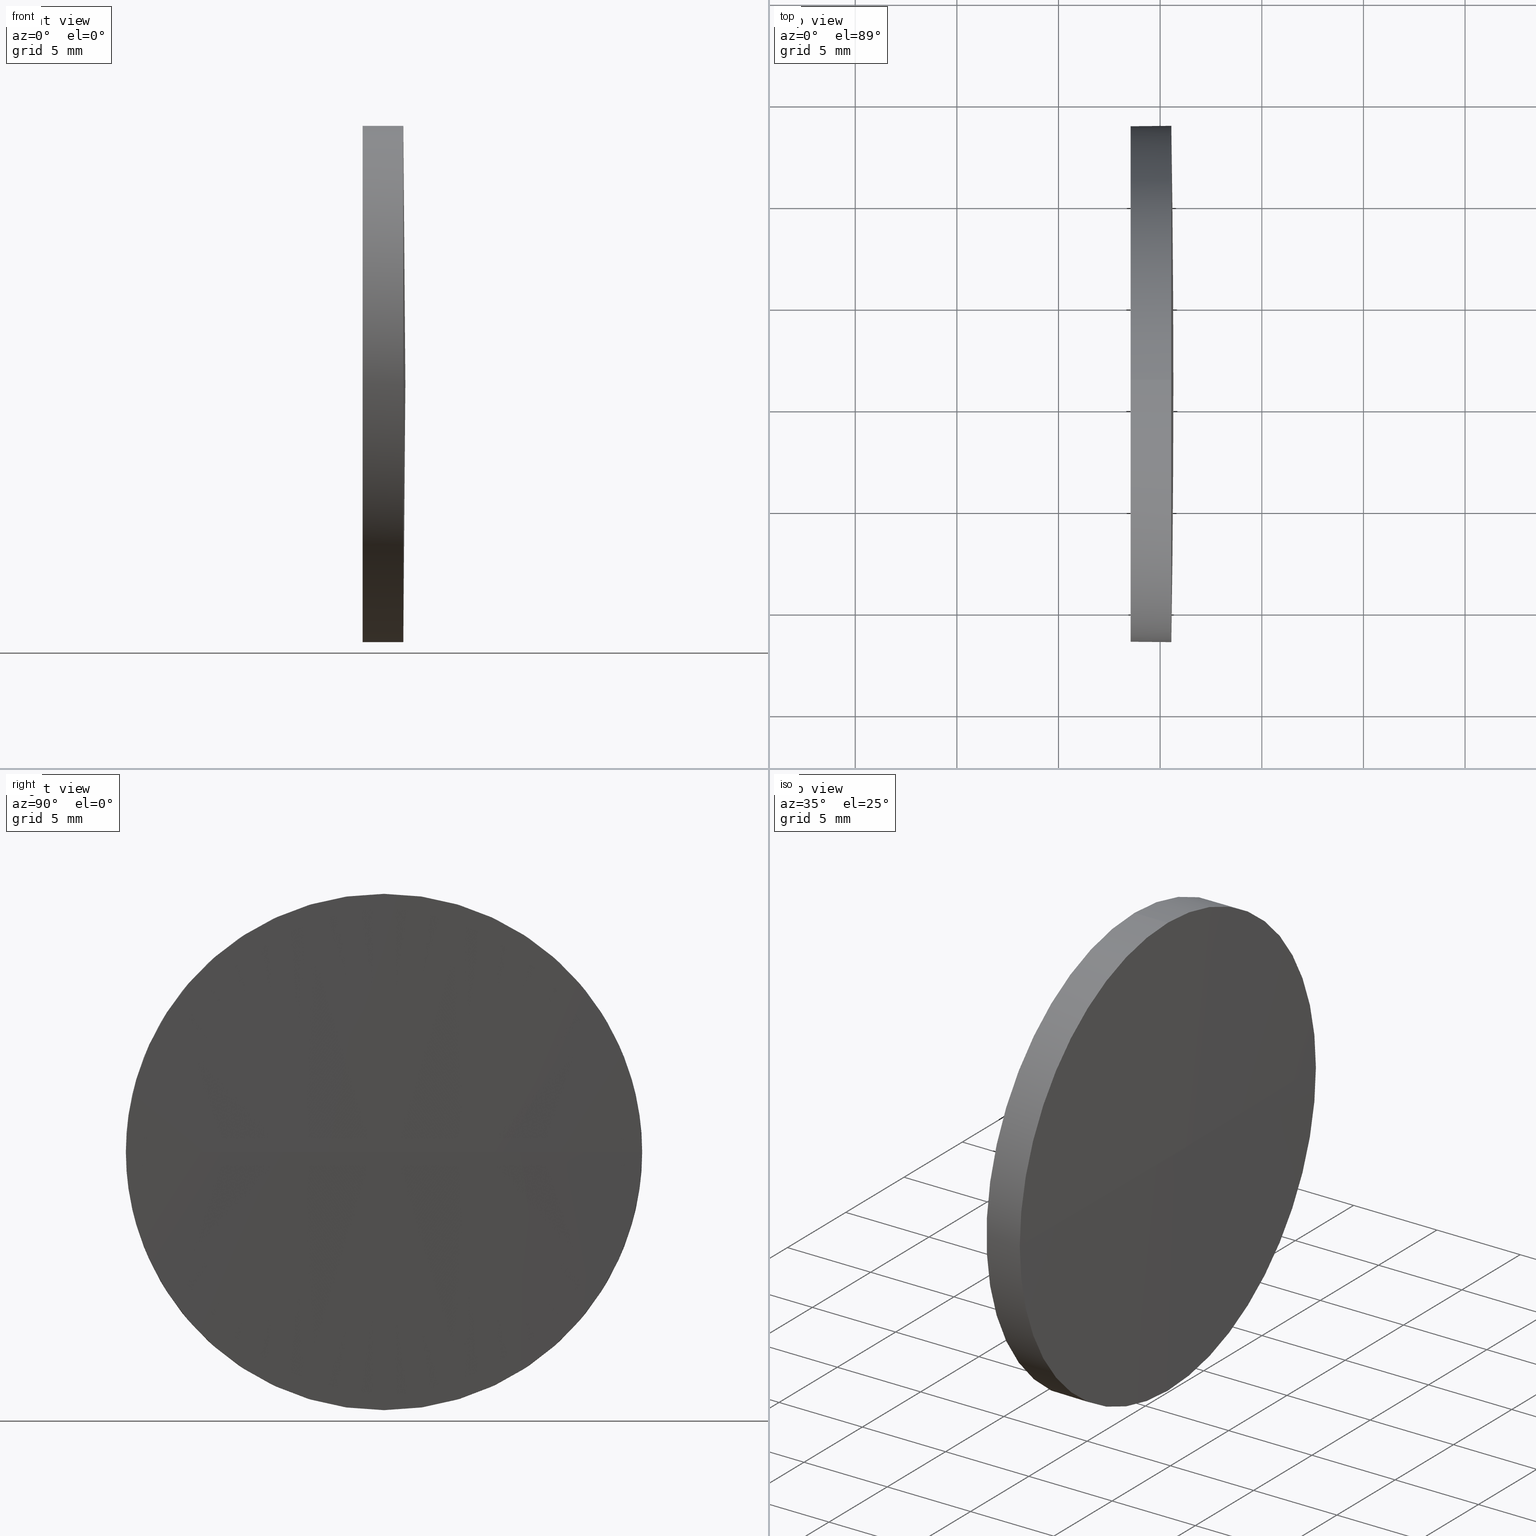
[diagram: canonical four-view strip — front | top / right | iso, engineering-drawing reading convention]
A machine part, canonical four-view strip (front | top / right | iso — engineering-drawing reading convention). The complete STEP part file that produces these views, byte-faithful:
ISO-10303-21;
HEADER;
FILE_DESCRIPTION (( 'STEP AP214' ),
    '1' );
FILE_NAME ('100473.STEP',
    '2019-06-11T05:42:31',
    ( '' ),
    ( '' ),
    'SwSTEP 2.0',
    'SolidWorks 2016',
    '' );
FILE_SCHEMA (( 'AUTOMOTIVE_DESIGN' ));
ENDSEC;

DATA;
#1 = DIRECTION ( 'NONE',  ( -1.000000000000000000, -0.0000000000000000000, -0.0000000000000000000 ) ) ;
#2 = VERTEX_POINT ( 'NONE', #18 ) ;
#3 = FACE_OUTER_BOUND ( 'NONE', #89, .T. ) ;
#4 =( LENGTH_UNIT ( ) NAMED_UNIT ( * ) SI_UNIT ( .MILLI., .METRE. ) );
#5 = FILL_AREA_STYLE ('',( #88 ) ) ;
#6 = PRODUCT_RELATED_PRODUCT_CATEGORY ( 'part', '', ( #25 ) ) ;
#7 = ORIENTED_EDGE ( 'NONE', *, *, #51, .F. ) ;
#8 =( GEOMETRIC_REPRESENTATION_CONTEXT ( 3 ) GLOBAL_UNCERTAINTY_ASSIGNED_CONTEXT ( ( #163 ) ) GLOBAL_UNIT_ASSIGNED_CONTEXT ( ( #183, #24, #129 ) ) REPRESENTATION_CONTEXT ( 'NONE', 'WORKASPACE' ) );
#9 = LINE ( 'NONE', #113, #74 ) ;
#10 = ORIENTED_EDGE ( 'NONE', *, *, #79, .T. ) ;
#11 = CIRCLE ( 'NONE', #151, 12.70000000000001700 ) ;
#12 = PRESENTATION_STYLE_ASSIGNMENT (( #28 ) ) ;
#13 = DIRECTION ( 'NONE',  ( -1.000000000000000000, -0.0000000000000000000, -0.0000000000000000000 ) ) ;
#14 = DIRECTION ( 'NONE',  ( 0.0000000000000000000, -1.224646799147353200E-016, 1.000000000000000000 ) ) ;
#15 = CARTESIAN_POINT ( 'NONE',  ( 505.6484435145779300, 171.1402879795670900, 0.0000000000000000000 ) ) ;
#16 = DIRECTION ( 'NONE',  ( 0.0000000000000000000, 0.0000000000000000000, 1.000000000000000000 ) ) ;
#17 = AXIS2_PLACEMENT_3D ( 'NONE', #72, #69, #31 ) ;
#18 = CARTESIAN_POINT ( 'NONE',  ( 503.5484435145779700, 171.1402879795670300, -12.70000000000001700 ) ) ;
#19 = EDGE_LOOP ( 'NONE', ( #7, #80, #91, #108, #21 ) ) ;
#20 = CARTESIAN_POINT ( 'NONE',  ( 503.5484435145779700, 171.1402879795670300, 0.0000000000000000000 ) ) ;
#21 = ORIENTED_EDGE ( 'NONE', *, *, #79, .F. ) ;
#22 = MECHANICAL_DESIGN_GEOMETRIC_PRESENTATION_REPRESENTATION (  '', ( #41 ), #29 ) ;
#23 =( GEOMETRIC_REPRESENTATION_CONTEXT ( 3 ) GLOBAL_UNCERTAINTY_ASSIGNED_CONTEXT ( ( #57 ) ) GLOBAL_UNIT_ASSIGNED_CONTEXT ( ( #4, #142, #65 ) ) REPRESENTATION_CONTEXT ( 'NONE', 'WORKASPACE' ) );
#24 =( NAMED_UNIT ( * ) PLANE_ANGLE_UNIT ( ) SI_UNIT ( $, .RADIAN. ) );
#25 = PRODUCT ( '100473', '100473', '', ( #36 ) ) ;
#26 = STYLED_ITEM ( 'NONE', ( #12 ), #61 ) ;
#27 = CYLINDRICAL_SURFACE ( 'NONE', #60, 12.70000000000001700 ) ;
#28 = SURFACE_STYLE_USAGE ( .BOTH. , #111 ) ;
#29 =( GEOMETRIC_REPRESENTATION_CONTEXT ( 3 ) GLOBAL_UNCERTAINTY_ASSIGNED_CONTEXT ( ( #112 ) ) GLOBAL_UNIT_ASSIGNED_CONTEXT ( ( #77, #177, #179 ) ) REPRESENTATION_CONTEXT ( 'NONE', 'WORKASPACE' ) );
#30 = CARTESIAN_POINT ( 'NONE',  ( -300.8515564854678800, 171.1402879795671500, 0.0000000000000000000 ) ) ;
#31 = DIRECTION ( 'NONE',  ( 0.0000000000000000000, -1.000000000000000000, 0.0000000000000000000 ) ) ;
#32 = DIRECTION ( 'NONE',  ( -1.000000000000000000, -0.0000000000000000000, -0.0000000000000000000 ) ) ;
#33 = APPLICATION_PROTOCOL_DEFINITION ( 'draft international standard', 'automotive_design', 1998, #119 ) ;
#34 = CYLINDRICAL_SURFACE ( 'NONE', #181, 12.70000000000001700 ) ;
#35 = CARTESIAN_POINT ( 'NONE',  ( -300.8515564854678800, 171.1402879795671500, 0.0000000000000000000 ) ) ;
#36 = PRODUCT_CONTEXT ( 'NONE', #119, 'mechanical' ) ;
#37 = CIRCLE ( 'NONE', #38, 12.70000000000001700 ) ;
#38 = AXIS2_PLACEMENT_3D ( 'NONE', #154, #97, #43 ) ;
#39 = DIRECTION ( 'NONE',  ( 0.0000000000000000000, 0.0000000000000000000, 1.000000000000000000 ) ) ;
#40 = ORIENTED_EDGE ( 'NONE', *, *, #48, .T. ) ;
#41 = STYLED_ITEM ( 'NONE', ( #148 ), #130 ) ;
#42 = EDGE_CURVE ( 'NONE', #125, #150, #134, .T. ) ;
#43 = DIRECTION ( 'NONE',  ( 0.0000000000000000000, 0.0000000000000000000, 1.000000000000000000 ) ) ;
#44 = DIRECTION ( 'NONE',  ( -1.000000000000000000, -0.0000000000000000000, -0.0000000000000000000 ) ) ;
#45 = EDGE_LOOP ( 'NONE', ( #52, #123, #168, #81 ) ) ;
#46 = CARTESIAN_POINT ( 'NONE',  ( 505.5484435145779700, 158.4402879795674700, 0.0000000000000000000 ) ) ;
#47 = VERTEX_POINT ( 'NONE', #46 ) ;
#48 = EDGE_CURVE ( 'NONE', #50, #125, #99, .T. ) ;
#49 = SURFACE_STYLE_FILL_AREA ( #109 ) ;
#50 = VERTEX_POINT ( 'NONE', #15 ) ;
#51 = EDGE_CURVE ( 'NONE', #150, #2, #9, .T. ) ;
#52 = ORIENTED_EDGE ( 'NONE', *, *, #48, .F. ) ;
#53 = AXIS2_PLACEMENT_3D ( 'NONE', #153, #171, #116 ) ;
#54 = CARTESIAN_POINT ( 'NONE',  ( 0.0000000000000000000, 0.0000000000000000000, 0.0000000000000000000 ) ) ;
#55 = CARTESIAN_POINT ( 'NONE',  ( 505.5484435145779700, 171.1402879795670300, 12.70000000000001700 ) ) ;
#56 = CARTESIAN_POINT ( 'NONE',  ( 505.5484435145779700, 171.1402879795670300, -12.70000000000001700 ) ) ;
#57 = UNCERTAINTY_MEASURE_WITH_UNIT (LENGTH_MEASURE( 1.000000000000000100E-005 ), #4, 'distance_accuracy_value', 'NONE');
#58 = EDGE_CURVE ( 'NONE', #47, #70, #161, .T. ) ;
#59 = VECTOR ( 'NONE', #66, 1000.000000000000000 ) ;
#60 = AXIS2_PLACEMENT_3D ( 'NONE', #115, #44, #64 ) ;
#61 = MANIFOLD_SOLID_BREP ( '��ת1', #149 ) ;
#62 = ADVANCED_FACE ( 'NONE', ( #83 ), #106, .T. ) ;
#63 = ADVANCED_FACE ( 'NONE', ( #139 ), #27, .T. ) ;
#64 = DIRECTION ( 'NONE',  ( 0.0000000000000000000, 0.0000000000000000000, 1.000000000000000000 ) ) ;
#65 =( NAMED_UNIT ( * ) SI_UNIT ( $, .STERADIAN. ) SOLID_ANGLE_UNIT ( ) );
#66 = DIRECTION ( 'NONE',  ( -1.000000000000000000, -0.0000000000000000000, -0.0000000000000000000 ) ) ;
#67 = AXIS2_PLACEMENT_3D ( 'NONE', #30, #14, #170 ) ;
#68 = DIRECTION ( 'NONE',  ( 0.0000000000000000000, 0.0000000000000000000, -1.000000000000000000 ) ) ;
#69 = DIRECTION ( 'NONE',  ( 0.0000000000000000000, 0.0000000000000000000, 1.000000000000000000 ) ) ;
#70 = VERTEX_POINT ( 'NONE', #55 ) ;
#71 = SURFACE_STYLE_FILL_AREA ( #5 ) ;
#72 = CARTESIAN_POINT ( 'NONE',  ( -300.8515564854678800, 171.1402879795671500, 0.0000000000000000000 ) ) ;
#73 = DIRECTION ( 'NONE',  ( 1.000000000000000000, 0.0000000000000000000, 0.0000000000000000000 ) ) ;
#74 = VECTOR ( 'NONE', #13, 1000.000000000000000 ) ;
#75 = EDGE_CURVE ( 'NONE', #70, #125, #37, .T. ) ;
#76 = AXIS2_PLACEMENT_3D ( 'NONE', #54, #39, #124 ) ;
#77 =( LENGTH_UNIT ( ) NAMED_UNIT ( * ) SI_UNIT ( .MILLI., .METRE. ) );
#78 = ORIENTED_EDGE ( 'NONE', *, *, #118, .F. ) ;
#79 = EDGE_CURVE ( 'NONE', #2, #145, #184, .T. ) ;
#80 = ORIENTED_EDGE ( 'NONE', *, *, #105, .T. ) ;
#81 = ORIENTED_EDGE ( 'NONE', *, *, #42, .F. ) ;
#82 = DIRECTION ( 'NONE',  ( -1.000000000000000000, -0.0000000000000000000, -0.0000000000000000000 ) ) ;
#83 = FACE_OUTER_BOUND ( 'NONE', #45, .T. ) ;
#84 = CARTESIAN_POINT ( 'NONE',  ( 505.5484435145779700, 171.1402879795670300, 0.0000000000000000000 ) ) ;
#85 = AXIS2_PLACEMENT_3D ( 'NONE', #140, #82, #143 ) ;
#86 = CARTESIAN_POINT ( 'NONE',  ( 503.5484435145779700, 171.1402879795670300, 0.0000000000000000000 ) ) ;
#87 = EDGE_CURVE ( 'NONE', #70, #145, #96, .T. ) ;
#88 = FILL_AREA_STYLE_COLOUR ( '', #94 ) ;
#89 = EDGE_LOOP ( 'NONE', ( #182, #40, #175, #166 ) ) ;
#90 = PRODUCT_DEFINITION_CONTEXT ( 'detailed design', #147, 'design' ) ;
#91 = ORIENTED_EDGE ( 'NONE', *, *, #58, .T. ) ;
#92 = SURFACE_STYLE_USAGE ( .BOTH. , #122 ) ;
#93 = ORIENTED_EDGE ( 'NONE', *, *, #75, .T. ) ;
#94 = COLOUR_RGB ( '',1.000000000000000000, 1.000000000000000000, 1.000000000000000000 ) ;
#95 = AXIS2_PLACEMENT_3D ( 'NONE', #146, #159, #144 ) ;
#96 = LINE ( 'NONE', #138, #59 ) ;
#97 = DIRECTION ( 'NONE',  ( -1.000000000000000000, -0.0000000000000000000, -0.0000000000000000000 ) ) ;
#98 = PLANE ( 'NONE',  #141 ) ;
#99 = CIRCLE ( 'NONE', #67, 806.5000000000458200 ) ;
#100 = CARTESIAN_POINT ( 'NONE',  ( 497.8102254789016000, 171.1402879795670300, 0.0000000000000000000 ) ) ;
#101 = CIRCLE ( 'NONE', #165, 806.5000000000457000 ) ;
#102 = SHAPE_DEFINITION_REPRESENTATION ( #131, #130 ) ;
#103 = EDGE_CURVE ( 'NONE', #50, #47, #101, .T. ) ;
#104 = APPLICATION_PROTOCOL_DEFINITION ( 'draft international standard', 'automotive_design', 1998, #147 ) ;
#105 = EDGE_CURVE ( 'NONE', #150, #47, #135, .T. ) ;
#106 = SPHERICAL_SURFACE ( 'NONE', #53, 806.5000000000458200 ) ;
#107 = ADVANCED_FACE ( 'NONE', ( #180 ), #98, .F. ) ;
#108 = ORIENTED_EDGE ( 'NONE', *, *, #87, .T. ) ;
#109 = FILL_AREA_STYLE ('',( #158 ) ) ;
#110 = ORIENTED_EDGE ( 'NONE', *, *, #42, .T. ) ;
#111 = SURFACE_SIDE_STYLE ('',( #49 ) ) ;
#112 = UNCERTAINTY_MEASURE_WITH_UNIT (LENGTH_MEASURE( 1.000000000000000100E-005 ), #77, 'distance_accuracy_value', 'NONE');
#113 = CARTESIAN_POINT ( 'NONE',  ( 497.8102254789016000, 171.1402879795670300, -12.70000000000001700 ) ) ;
#114 = AXIS2_PLACEMENT_3D ( 'NONE', #117, #32, #176 ) ;
#115 = CARTESIAN_POINT ( 'NONE',  ( 497.8102254789016000, 171.1402879795670300, 0.0000000000000000000 ) ) ;
#116 = DIRECTION ( 'NONE',  ( 0.0000000000000000000, -1.000000000000000000, 0.0000000000000000000 ) ) ;
#117 = CARTESIAN_POINT ( 'NONE',  ( 503.5484435145779700, 171.1402879795670300, 0.0000000000000000000 ) ) ;
#118 = EDGE_CURVE ( 'NONE', #145, #2, #11, .T. ) ;
#119 = APPLICATION_CONTEXT ( 'automotive_design' ) ;
#120 = DIRECTION ( 'NONE',  ( 0.0000000000000000000, 0.0000000000000000000, -1.000000000000000000 ) ) ;
#121 = EDGE_LOOP ( 'NONE', ( #110, #137, #78, #164, #93 ) ) ;
#122 = SURFACE_SIDE_STYLE ('',( #71 ) ) ;
#123 = ORIENTED_EDGE ( 'NONE', *, *, #103, .T. ) ;
#124 = DIRECTION ( 'NONE',  ( 1.000000000000000000, 0.0000000000000000000, 0.0000000000000000000 ) ) ;
#125 = VERTEX_POINT ( 'NONE', #186 ) ;
#126 = AXIS2_PLACEMENT_3D ( 'NONE', #84, #156, #16 ) ;
#127 = ORIENTED_EDGE ( 'NONE', *, *, #118, .T. ) ;
#128 = FACE_OUTER_BOUND ( 'NONE', #19, .T. ) ;
#129 =( NAMED_UNIT ( * ) SI_UNIT ( $, .STERADIAN. ) SOLID_ANGLE_UNIT ( ) );
#130 = ADVANCED_BREP_SHAPE_REPRESENTATION ( '100473', ( #61, #76 ), #23 ) ;
#131 = PRODUCT_DEFINITION_SHAPE ( 'NONE', 'NONE',  #162 ) ;
#132 = DIRECTION ( 'NONE',  ( -1.000000000000000000, 0.0000000000000000000, 0.0000000000000000000 ) ) ;
#133 = EDGE_LOOP ( 'NONE', ( #127, #10 ) ) ;
#134 = CIRCLE ( 'NONE', #126, 12.70000000000001700 ) ;
#135 = CIRCLE ( 'NONE', #95, 12.70000000000001700 ) ;
#136 = ADVANCED_FACE ( 'NONE', ( #128 ), #34, .T. ) ;
#137 = ORIENTED_EDGE ( 'NONE', *, *, #51, .T. ) ;
#138 = CARTESIAN_POINT ( 'NONE',  ( 497.8102254789016000, 171.1402879795670300, 12.70000000000001700 ) ) ;
#139 = FACE_OUTER_BOUND ( 'NONE', #121, .T. ) ;
#140 = CARTESIAN_POINT ( 'NONE',  ( 505.5484435145779700, 171.1402879795670300, 0.0000000000000000000 ) ) ;
#141 = AXIS2_PLACEMENT_3D ( 'NONE', #20, #73, #120 ) ;
#142 =( NAMED_UNIT ( * ) PLANE_ANGLE_UNIT ( ) SI_UNIT ( $, .RADIAN. ) );
#143 = DIRECTION ( 'NONE',  ( 0.0000000000000000000, 0.0000000000000000000, 1.000000000000000000 ) ) ;
#144 = DIRECTION ( 'NONE',  ( 0.0000000000000000000, 0.0000000000000000000, 1.000000000000000000 ) ) ;
#145 = VERTEX_POINT ( 'NONE', #174 ) ;
#146 = CARTESIAN_POINT ( 'NONE',  ( 505.5484435145779700, 171.1402879795670300, 0.0000000000000000000 ) ) ;
#147 = APPLICATION_CONTEXT ( 'automotive_design' ) ;
#148 = PRESENTATION_STYLE_ASSIGNMENT (( #92 ) ) ;
#149 = CLOSED_SHELL ( 'NONE', ( #63, #167, #62, #136, #107 ) ) ;
#150 = VERTEX_POINT ( 'NONE', #56 ) ;
#151 = AXIS2_PLACEMENT_3D ( 'NONE', #86, #160, #173 ) ;
#152 = COLOUR_RGB ( '',1.000000000000000000, 1.000000000000000000, 1.000000000000000000 ) ;
#153 = CARTESIAN_POINT ( 'NONE',  ( -300.8515564854678800, 171.1402879795671500, 0.0000000000000000000 ) ) ;
#154 = CARTESIAN_POINT ( 'NONE',  ( 505.5484435145779700, 171.1402879795670300, 0.0000000000000000000 ) ) ;
#155 = MECHANICAL_DESIGN_GEOMETRIC_PRESENTATION_REPRESENTATION (  '', ( #26 ), #8 ) ;
#156 = DIRECTION ( 'NONE',  ( -1.000000000000000000, -0.0000000000000000000, -0.0000000000000000000 ) ) ;
#157 = DIRECTION ( 'NONE',  ( 0.0000000000000000000, 0.0000000000000000000, 1.000000000000000000 ) ) ;
#158 = FILL_AREA_STYLE_COLOUR ( '', #152 ) ;
#159 = DIRECTION ( 'NONE',  ( -1.000000000000000000, -0.0000000000000000000, -0.0000000000000000000 ) ) ;
#160 = DIRECTION ( 'NONE',  ( -1.000000000000000000, -0.0000000000000000000, -0.0000000000000000000 ) ) ;
#161 = CIRCLE ( 'NONE', #85, 12.70000000000001700 ) ;
#162 = PRODUCT_DEFINITION ( 'δ֪', '', #169, #90 ) ;
#163 = UNCERTAINTY_MEASURE_WITH_UNIT (LENGTH_MEASURE( 1.000000000000000100E-005 ), #183, 'distance_accuracy_value', 'NONE');
#164 = ORIENTED_EDGE ( 'NONE', *, *, #87, .F. ) ;
#165 = AXIS2_PLACEMENT_3D ( 'NONE', #35, #68, #132 ) ;
#166 = ORIENTED_EDGE ( 'NONE', *, *, #58, .F. ) ;
#167 = ADVANCED_FACE ( 'NONE', ( #3 ), #185, .T. ) ;
#168 = ORIENTED_EDGE ( 'NONE', *, *, #105, .F. ) ;
#169 = PRODUCT_DEFINITION_FORMATION_WITH_SPECIFIED_SOURCE ( '�κ�', '', #25, .NOT_KNOWN. ) ;
#170 = DIRECTION ( 'NONE',  ( 0.0000000000000000000, -1.000000000000000000, -1.224646799147353200E-016 ) ) ;
#171 = DIRECTION ( 'NONE',  ( 0.0000000000000000000, 0.0000000000000000000, 1.000000000000000000 ) ) ;
#172 = PRESENTATION_LAYER_ASSIGNMENT (  '', '', ( #26 ) ) ;
#173 = DIRECTION ( 'NONE',  ( 0.0000000000000000000, 0.0000000000000000000, 1.000000000000000000 ) ) ;
#174 = CARTESIAN_POINT ( 'NONE',  ( 503.5484435145779700, 171.1402879795670300, 12.70000000000001700 ) ) ;
#175 = ORIENTED_EDGE ( 'NONE', *, *, #75, .F. ) ;
#176 = DIRECTION ( 'NONE',  ( 0.0000000000000000000, 0.0000000000000000000, 1.000000000000000000 ) ) ;
#177 =( NAMED_UNIT ( * ) PLANE_ANGLE_UNIT ( ) SI_UNIT ( $, .RADIAN. ) );
#178 = PRESENTATION_LAYER_ASSIGNMENT (  '', '', ( #41 ) ) ;
#179 =( NAMED_UNIT ( * ) SI_UNIT ( $, .STERADIAN. ) SOLID_ANGLE_UNIT ( ) );
#180 = FACE_OUTER_BOUND ( 'NONE', #133, .T. ) ;
#181 = AXIS2_PLACEMENT_3D ( 'NONE', #100, #1, #157 ) ;
#182 = ORIENTED_EDGE ( 'NONE', *, *, #103, .F. ) ;
#183 =( LENGTH_UNIT ( ) NAMED_UNIT ( * ) SI_UNIT ( .MILLI., .METRE. ) );
#184 = CIRCLE ( 'NONE', #114, 12.70000000000001700 ) ;
#185 = SPHERICAL_SURFACE ( 'NONE', #17, 806.5000000000458200 ) ;
#186 = CARTESIAN_POINT ( 'NONE',  ( 505.5484435145779700, 183.8402879795667100, 1.555301434917087000E-015 ) ) ;
ENDSEC;
END-ISO-10303-21;
